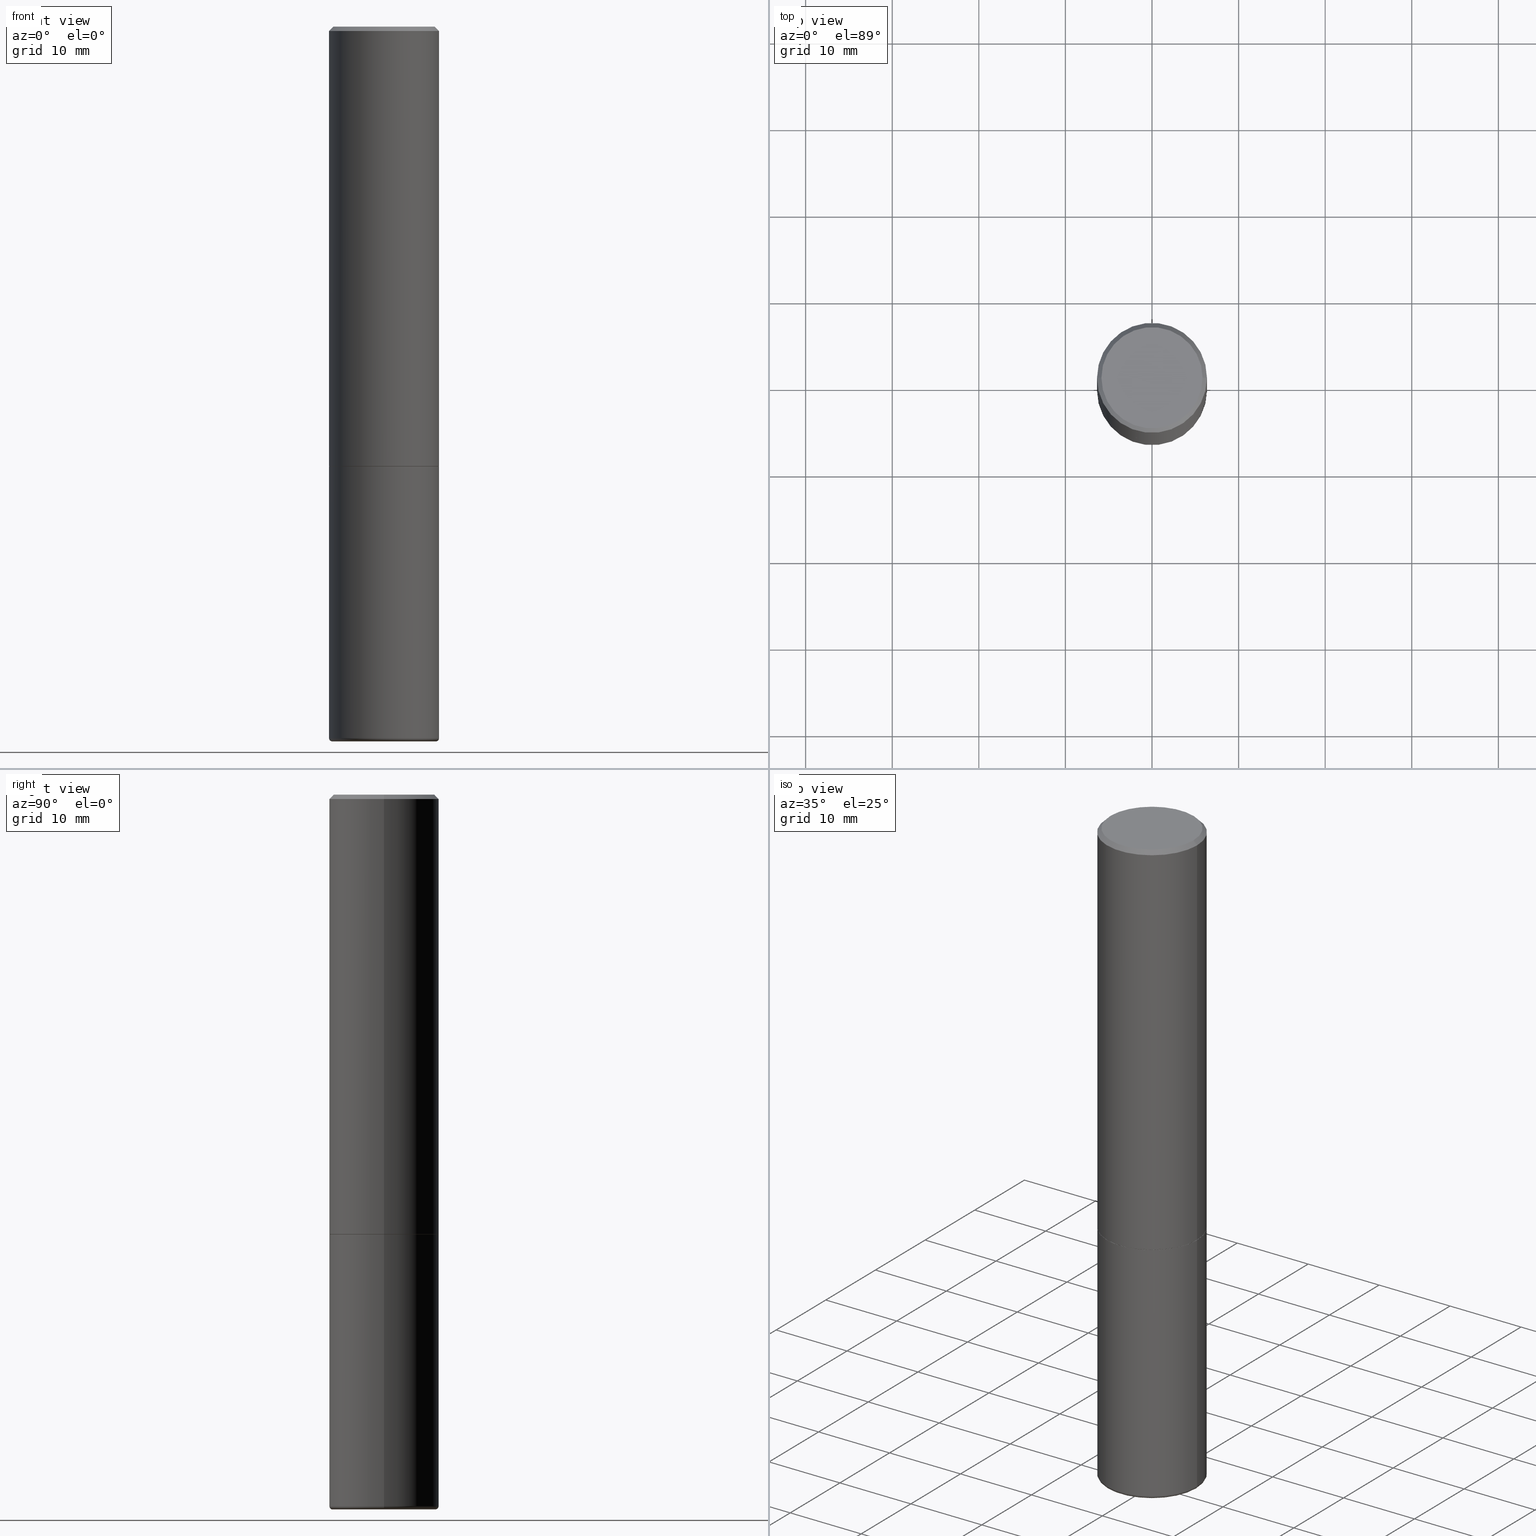
[diagram: canonical four-view strip — front | top / right | iso, engineering-drawing reading convention]
A machine part, canonical four-view strip (front | top / right | iso — engineering-drawing reading convention). The complete STEP part file that produces these views, byte-faithful:
ISO-10303-21;
HEADER;
FILE_DESCRIPTION (( 'STEP AP203' ),
    '1' );
FILE_NAME ('37352.STEP',
    '2024-03-02T00:14:32',
    ( '' ),
    ( '' ),
    'SwSTEP 2.0',
    'SolidWorks 2023',
    '' );
FILE_SCHEMA (( 'CONFIG_CONTROL_DESIGN' ));
ENDSEC;

DATA;
#1 = DIRECTION ( 'NONE',  ( -1.000000000000000000, 7.105427357601066545E-15, 0.000000000000000000 ) ) ;
#2 = CARTESIAN_POINT ( 'NONE',  ( -0.2499999999999999722, 1.675911042644703182E-15, -0.02000000000000009409 ) ) ;
#3 = CARTESIAN_POINT ( 'NONE',  ( 4.890937612370273754E-29, -6.982962677686291954E-15, -2.000000000000000444 ) ) ;
#4 = CC_DESIGN_DATE_AND_TIME_ASSIGNMENT ( #356, #69, ( #213 ) ) ;
#5 = CARTESIAN_POINT ( 'NONE',  ( 0.2489999999999999991, -8.721720384430172617E-15, -2.000000000000000444 ) ) ;
#6 = CIRCLE ( 'NONE', #128, 0.2499999999999999722 ) ;
#7 = DIRECTION ( 'NONE',  ( 1.000000000000000000, -6.982962677686266711E-15, 0.000000000000000000 ) ) ;
#8 = AXIS2_PLACEMENT_3D ( 'NONE', #40, #290, #1 ) ;
#9 = CARTESIAN_POINT ( 'NONE',  ( 4.890937612370296805E-31, -6.982962677686323656E-17, -0.02000000000000009409 ) ) ;
#10 = MANIFOLD_SOLID_BREP ( 'Body-Move/Copy2[2]', #409 ) ;
#11 = EDGE_CURVE ( 'NONE', #336, #150, #337, .T. ) ;
#12 = DIRECTION ( 'NONE',  ( -1.000000000000000000, 6.982962677686265922E-15, -4.876176775795935793E-29 ) ) ;
#13 = DIRECTION ( 'NONE',  ( -2.445468806185136597E-29, 3.491481338843145583E-15, 1.000000000000000000 ) ) ;
#14 = EDGE_LOOP ( 'NONE', ( #384, #413, #210, #358 ) ) ;
#15 = DIRECTION ( 'NONE',  ( 1.000000000000000000, -6.982962677686266711E-15, 4.876176775795935793E-29 ) ) ;
#16 = DIRECTION ( 'NONE',  ( 1.000000000000000000, -6.982962677686266711E-15, 0.000000000000000000 ) ) ;
#17 = ORIENTED_EDGE ( 'NONE', *, *, #30, .F. ) ;
#18 = AXIS2_PLACEMENT_3D ( 'NONE', #314, #23, #50 ) ;
#19 =( CONVERSION_BASED_UNIT ( 'INCH', #308 ) LENGTH_UNIT ( ) NAMED_UNIT ( #67 ) );
#20 = AXIS2_PLACEMENT_3D ( 'NONE', #181, #113, #55 ) ;
#21 = SECURITY_CLASSIFICATION ( '', '', #24 ) ;
#22 = CALENDAR_DATE ( 2024, 1, 3 ) ;
#23 = DIRECTION ( 'NONE',  ( -2.445468806185136597E-29, 3.491481338843145583E-15, 1.000000000000000000 ) ) ;
#24 = SECURITY_CLASSIFICATION_LEVEL ( 'unclassified' ) ;
#25 = APPROVAL_DATE_TIME ( #287, #400 ) ;
#26 = AXIS2_PLACEMENT_3D ( 'NONE', #233, #77, #401 ) ;
#27 = CIRCLE ( 'NONE', #377, 0.2500000000000000000 ) ;
#28 = PRODUCT ( '37352', '37352', '', ( #188 ) ) ;
#29 = PERSON_AND_ORGANIZATION ( #283, #91 ) ;
#30 = EDGE_CURVE ( 'NONE', #392, #240, #298, .T. ) ;
#31 = APPROVAL_ROLE ( '' ) ;
#32 = VERTEX_POINT ( 'NONE', #119 ) ;
#33 = ADVANCED_BREP_SHAPE_REPRESENTATION ( '37352', ( #414, #10, #345 ), #389 ) ;
#34 = CONICAL_SURFACE ( 'NONE', #145, 0.2489999999999999991, 0.7853981633975336552 ) ;
#35 = VECTOR ( 'NONE', #364, 39.37007874015748143 ) ;
#36 = EDGE_CURVE ( 'NONE', #253, #110, #388, .T. ) ;
#37 = FACE_OUTER_BOUND ( 'NONE', #60, .T. ) ;
#38 = FACE_OUTER_BOUND ( 'NONE', #14, .T. ) ;
#39 = ORIENTED_EDGE ( 'NONE', *, *, #241, .F. ) ;
#40 = CARTESIAN_POINT ( 'NONE',  ( -0.2350000000000000144, -9.625166702121340032E-15, -3.234999999999999876 ) ) ;
#41 = CARTESIAN_POINT ( 'NONE',  ( -1.043851414335219407E-44, 1.490343170380446839E-30, 4.268512490100409923E-16 ) ) ;
#42 = COORDINATED_UNIVERSAL_TIME_OFFSET ( 5, 0, .BEHIND. ) ;
#43 = ORIENTED_EDGE ( 'NONE', *, *, #373, .T. ) ;
#44 = CC_DESIGN_APPROVAL ( #400, ( #213 ) ) ;
#45 = DIRECTION ( 'NONE',  ( 1.000000000000000000, -6.982962677686268288E-15, 0.000000000000000000 ) ) ;
#46 = DATE_AND_TIME ( #404, #80 ) ;
#47 = DIRECTION ( 'NONE',  ( 1.000000000000000000, -6.982962677686265922E-15, 4.876176775795935793E-29 ) ) ;
#48 = CARTESIAN_POINT ( 'NONE',  ( -0.2499999999999999722, 1.675911042644703182E-15, -0.02000000000000009409 ) ) ;
#49 = DIRECTION ( 'NONE',  ( 1.000000000000000000, -6.982962677686270655E-15, 0.000000000000000000 ) ) ;
#50 = DIRECTION ( 'NONE',  ( 1.000000000000000000, -6.982962677686270655E-15, 0.000000000000000000 ) ) ;
#51 = APPROVAL_STATUS ( 'not_yet_approved' ) ;
#52 = PRODUCT_RELATED_PRODUCT_CATEGORY ( 'detail', '', ( #28 ) ) ;
#53 = CARTESIAN_POINT ( 'NONE',  ( 0.000000000000000000, 0.000000000000000000, 0.000000000000000000 ) ) ;
#54 = CARTESIAN_POINT ( 'NONE',  ( 0.2350000000000000144, -1.293593836041384947E-14, -3.234999999999999876 ) ) ;
#55 = DIRECTION ( 'NONE',  ( 1.000000000000000000, -6.982962677686270655E-15, 0.000000000000000000 ) ) ;
#56 =( NAMED_UNIT ( * ) SI_UNIT ( $, .STERADIAN. ) SOLID_ANGLE_UNIT ( ) );
#57 = DIRECTION ( 'NONE',  ( 1.000000000000000000, -6.982962677686266711E-15, 0.000000000000000000 ) ) ;
#58 = ADVANCED_FACE ( 'NONE', ( #215 ), #374, .T. ) ;
#59 = DATE_AND_TIME ( #22, #183 ) ;
#60 = EDGE_LOOP ( 'NONE', ( #341, #141, #332, #386 ) ) ;
#61 = APPROVAL_PERSON_ORGANIZATION ( #248, #400, #220 ) ;
#62 = PERSON_AND_ORGANIZATION_ROLE ( 'creator' ) ;
#63 = CARTESIAN_POINT ( 'NONE',  ( 0.000000000000000000, 0.000000000000000000, 0.000000000000000000 ) ) ;
#64 = CARTESIAN_POINT ( 'NONE',  ( 4.890937612370296805E-31, -6.982962677686323656E-17, -0.02000000000000009409 ) ) ;
#65 = CALENDAR_DATE ( 2024, 1, 3 ) ;
#66 = EDGE_LOOP ( 'NONE', ( #366, #259, #293, #162 ) ) ;
#67 = DIMENSIONAL_EXPONENTS ( 1.000000000000000000, 0.000000000000000000, 0.000000000000000000, 0.000000000000000000, 0.000000000000000000, 0.000000000000000000, 0.000000000000000000 ) ;
#68 = TOROIDAL_SURFACE ( 'NONE', #350, 0.2350000000000000144, 0.01500000000000038629 ) ;
#69 = DATE_TIME_ROLE ( 'creation_date' ) ;
#70 = CARTESIAN_POINT ( 'NONE',  ( 0.2499999999999999722, -1.784954126219746189E-15, -0.02000000000000009409 ) ) ;
#71 = AXIS2_PLACEMENT_3D ( 'NONE', #239, #272, #406 ) ;
#72 = ORIENTED_EDGE ( 'NONE', *, *, #127, .F. ) ;
#73 = CARTESIAN_POINT ( 'NONE',  ( 2.671324608371790310E-29, -1.890348965286478456E-14, -3.250000000000000444 ) ) ;
#74 = CYLINDRICAL_SURFACE ( 'NONE', #376, 0.2500000000000001110 ) ;
#75 = DIRECTION ( 'NONE',  ( 2.438088387897960049E-29, -3.491481338843145188E-15, -1.000000000000000000 ) ) ;
#76 = CARTESIAN_POINT ( 'NONE',  ( 0.2500000000000000000, -8.728703347107858632E-15, -2.000000000000000444 ) ) ;
#77 = DIRECTION ( 'NONE',  ( -2.445468806185136597E-29, 3.491481338843145583E-15, 1.000000000000000000 ) ) ;
#78 = CC_DESIGN_PERSON_AND_ORGANIZATION_ASSIGNMENT ( #383, #286, ( #213 ) ) ;
#79 = ORIENTED_EDGE ( 'NONE', *, *, #285, .T. ) ;
#80 = LOCAL_TIME ( 19, 14, 32.00000000000000000, #42 ) ;
#81 = DIRECTION ( 'NONE',  ( -2.445468806185136597E-29, 3.491481338843145583E-15, 1.000000000000000000 ) ) ;
#82 = ORIENTED_EDGE ( 'NONE', *, *, #305, .F. ) ;
#83 = DIRECTION ( 'NONE',  ( 1.000000000000000000, -6.982962677686266711E-15, 0.000000000000000000 ) ) ;
#84 = APPROVAL_ROLE ( '' ) ;
#85 = ADVANCED_FACE ( 'NONE', ( #115 ), #244, .F. ) ;
#86 = TOROIDAL_SURFACE ( 'NONE', #26, 0.2350000000000000144, 0.01500000000000038629 ) ;
#87 = VECTOR ( 'NONE', #333, 39.37007874015748143 ) ;
#88 = ADVANCED_FACE ( 'NONE', ( #225 ), #68, .T. ) ;
#89 = DIRECTION ( 'NONE',  ( 1.000000000000000000, -6.982962677686266711E-15, 4.879110437680785527E-29 ) ) ;
#90 = APPLICATION_CONTEXT ( 'configuration controlled 3d designs of mechanical parts and assemblies' ) ;
#91 = ORGANIZATION ( 'UNSPECIFIED', 'UNSPECIFIED', '' ) ;
#92 = ORIENTED_EDGE ( 'NONE', *, *, #261, .F. ) ;
#93 = PERSON_AND_ORGANIZATION ( #283, #91 ) ;
#94 = DESIGN_CONTEXT ( 'detailed design', #90, 'design' ) ;
#95 = VECTOR ( 'NONE', #399, 39.37007874015748143 ) ;
#96 = APPLICATION_PROTOCOL_DEFINITION ( 'international standard', 'config_control_design', 1994, #90 ) ;
#97 = ORIENTED_EDGE ( 'NONE', *, *, #348, .F. ) ;
#98 = ADVANCED_FACE ( 'NONE', ( #385 ), #310, .T. ) ;
#99 = VERTEX_POINT ( 'NONE', #2 ) ;
#100 = LINE ( 'NONE', #294, #35 ) ;
#101 = VECTOR ( 'NONE', #174, 39.37007874015748143 ) ;
#102 = EDGE_LOOP ( 'NONE', ( #372, #276, #155, #92 ) ) ;
#103 = CC_DESIGN_PERSON_AND_ORGANIZATION_ASSIGNMENT ( #29, #186, ( #207 ) ) ;
#104 = LINE ( 'NONE', #133, #87 ) ;
#105 = DIRECTION ( 'NONE',  ( 1.000000000000000000, -6.982962677686266711E-15, 0.000000000000000000 ) ) ;
#106 = AXIS2_PLACEMENT_3D ( 'NONE', #178, #343, #49 ) ;
#107 = APPROVAL_PERSON_ORGANIZATION ( #352, #200, #31 ) ;
#108 =( LENGTH_UNIT ( ) NAMED_UNIT ( * ) SI_UNIT ( $, .METRE. ) );
#109 = CYLINDRICAL_SURFACE ( 'NONE', #71, 0.2500000000000001110 ) ;
#110 = VERTEX_POINT ( 'NONE', #255 ) ;
#111 = EDGE_CURVE ( 'NONE', #117, #99, #6, .T. ) ;
#112 = ORIENTED_EDGE ( 'NONE', *, *, #158, .T. ) ;
#113 = DIRECTION ( 'NONE',  ( -2.445468806185136597E-29, 3.491481338843145583E-15, 1.000000000000000000 ) ) ;
#114 = CARTESIAN_POINT ( 'NONE',  ( 4.890937612370273754E-29, -6.982962677686291954E-15, -2.000000000000000444 ) ) ;
#115 = FACE_OUTER_BOUND ( 'NONE', #316, .T. ) ;
#116 = FACE_OUTER_BOUND ( 'NONE', #300, .T. ) ;
#117 = VERTEX_POINT ( 'NONE', #70 ) ;
#118 = CONICAL_SURFACE ( 'NONE', #212, 0.2489999999999999991, 0.7853981633975336552 ) ;
#119 = CARTESIAN_POINT ( 'NONE',  ( 0.2489999999999999991, -8.721720384430172617E-15, -2.000000000000000444 ) ) ;
#120 = EDGE_CURVE ( 'NONE', #336, #132, #194, .T. ) ;
#121 = PERSON_AND_ORGANIZATION_ROLE ( 'design_owner' ) ;
#122 = ORIENTED_EDGE ( 'NONE', *, *, #354, .T. ) ;
#123 = CC_DESIGN_DATE_AND_TIME_ASSIGNMENT ( #59, #282, ( #21 ) ) ;
#124 = APPLICATION_PROTOCOL_DEFINITION ( 'international standard', 'config_control_design', 1994, #367 ) ;
#125 = DIRECTION ( 'NONE',  ( 2.445468806185136597E-29, -3.491481338843145583E-15, -1.000000000000000000 ) ) ;
#126 = ORIENTED_EDGE ( 'NONE', *, *, #195, .F. ) ;
#127 = EDGE_CURVE ( 'NONE', #240, #392, #236, .T. ) ;
#128 = AXIS2_PLACEMENT_3D ( 'NONE', #64, #251, #387 ) ;
#129 = CARTESIAN_POINT ( 'NONE',  ( 7.947773620101696182E-29, -1.134731435124022600E-14, -3.250000000000000444 ) ) ;
#130 = AXIS2_PLACEMENT_3D ( 'NONE', #41, #13, #360 ) ;
#131 = CARTESIAN_POINT ( 'NONE',  ( 4.888492143564088712E-29, -6.979471196347448158E-15, -1.999000000000000110 ) ) ;
#132 = VERTEX_POINT ( 'NONE', #205 ) ;
#133 = CARTESIAN_POINT ( 'NONE',  ( 0.2500000000000000000, -1.745740669421566678E-15, 1.219044193948983948E-29 ) ) ;
#134 = DIRECTION ( 'NONE',  ( -1.000000000000000000, 6.982962677686266711E-15, 0.000000000000000000 ) ) ;
#135 = ORIENTED_EDGE ( 'NONE', *, *, #36, .T. ) ;
#136 = DIRECTION ( 'NONE',  ( -2.445468806185136597E-29, 3.491481338843145583E-15, 1.000000000000000000 ) ) ;
#137 = EDGE_CURVE ( 'NONE', #32, #295, #234, .T. ) ;
#138 = AXIS2_PLACEMENT_3D ( 'NONE', #9, #230, #134 ) ;
#139 = DIRECTION ( 'NONE',  ( -2.445468806185136877E-29, 3.491481338843145188E-15, 1.000000000000000000 ) ) ;
#140 = CARTESIAN_POINT ( 'NONE',  ( 0.000000000000000000, 0.000000000000000000, 0.000000000000000000 ) ) ;
#141 = ORIENTED_EDGE ( 'NONE', *, *, #381, .T. ) ;
#142 = ADVANCED_FACE ( 'NONE', ( #37 ), #74, .T. ) ;
#143 = FACE_OUTER_BOUND ( 'NONE', #152, .T. ) ;
#144 = ORIENTED_EDGE ( 'NONE', *, *, #265, .F. ) ;
#145 = AXIS2_PLACEMENT_3D ( 'NONE', #201, #365, #16 ) ;
#146 = CARTESIAN_POINT ( 'NONE',  ( -0.2489999999999999991, -5.213711265643642498E-15, -2.000000000000000444 ) ) ;
#147 = CARTESIAN_POINT ( 'NONE',  ( 0.000000000000000000, 0.000000000000000000, 0.000000000000000000 ) ) ;
#148 = FACE_OUTER_BOUND ( 'NONE', #281, .T. ) ;
#149 = AXIS2_PLACEMENT_3D ( 'NONE', #73, #75, #12 ) ;
#150 = VERTEX_POINT ( 'NONE', #304 ) ;
#151 = FACE_OUTER_BOUND ( 'NONE', #102, .T. ) ;
#152 = EDGE_LOOP ( 'NONE', ( #330, #270 ) ) ;
#153 = PERSON_AND_ORGANIZATION ( #283, #91 ) ;
#154 = ADVANCED_FACE ( 'NONE', ( #38 ), #34, .T. ) ;
#155 = ORIENTED_EDGE ( 'NONE', *, *, #111, .F. ) ;
#156 = LOCAL_TIME ( 19, 14, 32.00000000000000000, #221 ) ;
#157 = COORDINATED_UNIVERSAL_TIME_OFFSET ( 5, 0, .BEHIND. ) ;
#158 = EDGE_CURVE ( 'NONE', #99, #117, #361, .T. ) ;
#159 = CALENDAR_DATE ( 2024, 1, 3 ) ;
#160 = ORIENTED_EDGE ( 'NONE', *, *, #30, .T. ) ;
#161 = CARTESIAN_POINT ( 'NONE',  ( -0.2500000000000000000, 1.776356839400250465E-15, -1.229733772563726445E-29 ) ) ;
#162 = ORIENTED_EDGE ( 'NONE', *, *, #354, .F. ) ;
#163 = AXIS2_PLACEMENT_3D ( 'NONE', #167, #299, #45 ) ;
#164 = VERTEX_POINT ( 'NONE', #371 ) ;
#165 = DIRECTION ( 'NONE',  ( -2.445468806185136597E-29, 3.491481338843145583E-15, 1.000000000000000000 ) ) ;
#166 = DIRECTION ( 'NONE',  ( 2.438088387897960049E-29, -3.491481338843145188E-15, -1.000000000000000000 ) ) ;
#167 = CARTESIAN_POINT ( 'NONE',  ( 4.888492143564088712E-29, -6.979471196347448158E-15, -1.999000000000000110 ) ) ;
#168 = VERTEX_POINT ( 'NONE', #76 ) ;
#169 = LINE ( 'NONE', #329, #170 ) ;
#170 = VECTOR ( 'NONE', #139, 39.37007874015748143 ) ;
#171 = LINE ( 'NONE', #48, #307 ) ;
#172 = ORIENTED_EDGE ( 'NONE', *, *, #373, .F. ) ;
#173 = ORIENTED_EDGE ( 'NONE', *, *, #36, .F. ) ;
#174 = DIRECTION ( 'NONE',  ( 0.7071067811866078578, -2.468850131082888544E-15, 0.7071067811864871766 ) ) ;
#175 = ORIENTED_EDGE ( 'NONE', *, *, #137, .F. ) ;
#176 = EDGE_LOOP ( 'NONE', ( #172, #160, #79, #393 ) ) ;
#177 = DIRECTION ( 'NONE',  ( -2.445468806185136597E-29, 3.491481338843145583E-15, 1.000000000000000000 ) ) ;
#178 = CARTESIAN_POINT ( 'NONE',  ( 7.911091588008916622E-29, -1.129494213115757616E-14, -3.234999999999999876 ) ) ;
#179 = CC_DESIGN_PERSON_AND_ORGANIZATION_ASSIGNMENT ( #324, #62, ( #207 ) ) ;
#180 = EDGE_LOOP ( 'NONE', ( #309, #228, #122, #82 ) ) ;
#181 = CARTESIAN_POINT ( 'NONE',  ( 7.947773620101696182E-29, -1.134731435124022600E-14, -3.250000000000000444 ) ) ;
#182 = AXIS2_PLACEMENT_3D ( 'NONE', #246, #177, #89 ) ;
#183 = LOCAL_TIME ( 19, 14, 32.00000000000000000, #157 ) ;
#184 = DIRECTION ( 'NONE',  ( -0.7071067811866078578, 7.493145998870571886E-15, 0.7071067811864871766 ) ) ;
#185 = ADVANCED_FACE ( 'NONE', ( #268 ), #86, .T. ) ;
#186 = PERSON_AND_ORGANIZATION_ROLE ( 'design_supplier' ) ;
#187 = ORIENTED_EDGE ( 'NONE', *, *, #416, .T. ) ;
#188 = MECHANICAL_CONTEXT ( 'NONE', #367, 'mechanical' ) ;
#189 = APPROVAL_DATE_TIME ( #390, #200 ) ;
#190 = AXIS2_PLACEMENT_3D ( 'NONE', #3, #166, #331 ) ;
#191 = CIRCLE ( 'NONE', #284, 0.2500000000000000000 ) ;
#192 = CARTESIAN_POINT ( 'NONE',  ( 4.890937612370296805E-31, -6.982962677686323656E-17, -0.02000000000000009409 ) ) ;
#193 = ORIENTED_EDGE ( 'NONE', *, *, #127, .T. ) ;
#194 = LINE ( 'NONE', #161, #417 ) ;
#195 = EDGE_CURVE ( 'NONE', #235, #32, #263, .T. ) ;
#196 = UNCERTAINTY_MEASURE_WITH_UNIT (LENGTH_MEASURE( 1.000000000000000082E-05 ), #19, 'distance_accuracy_value', 'NONE');
#197 = DIRECTION ( 'NONE',  ( 1.000000000000000000, -6.982962677686268288E-15, 0.000000000000000000 ) ) ;
#198 = CARTESIAN_POINT ( 'NONE',  ( -0.2489999999999999991, -5.208412811295419307E-15, -2.000000000000000444 ) ) ;
#199 = CIRCLE ( 'NONE', #18, 0.2500000000000000000 ) ;
#200 = APPROVAL ( #325, 'UNSPECIFIED' ) ;
#201 = CARTESIAN_POINT ( 'NONE',  ( 4.890937612370273754E-29, -6.982962677686291954E-15, -2.000000000000000444 ) ) ;
#202 = LINE ( 'NONE', #208, #95 ) ;
#203 = FACE_OUTER_BOUND ( 'NONE', #320, .T. ) ;
#204 = FACE_OUTER_BOUND ( 'NONE', #297, .T. ) ;
#205 = CARTESIAN_POINT ( 'NONE',  ( -0.2500000000000000000, -7.362595565021682805E-15, -2.000000000000000444 ) ) ;
#206 = ADVANCED_FACE ( 'NONE', ( #143 ), #396, .F. ) ;
#207 = PRODUCT_DEFINITION_FORMATION_WITH_SPECIFIED_SOURCE ( 'ANY', '', #28, .NOT_KNOWN. ) ;
#208 = CARTESIAN_POINT ( 'NONE',  ( -0.2500000000000001110, 1.776356839400251254E-15, -1.229733772563727006E-29 ) ) ;
#209 = CARTESIAN_POINT ( 'NONE',  ( 0.2350000000000000144, -1.298831058049649931E-14, -3.250000000000000444 ) ) ;
#210 = ORIENTED_EDGE ( 'NONE', *, *, #137, .T. ) ;
#211 = CARTESIAN_POINT ( 'NONE',  ( 0.2500000000000002220, -8.725211865769017202E-15, -1.999000000000000110 ) ) ;
#212 = AXIS2_PLACEMENT_3D ( 'NONE', #403, #243, #83 ) ;
#213 = PRODUCT_DEFINITION ( 'UNKNOWN', '', #207, #94 ) ;
#214 = DIRECTION ( 'NONE',  ( -0.7071067811865460184, 2.468850131082241283E-15, -0.7071067811865490160 ) ) ;
#215 = FACE_OUTER_BOUND ( 'NONE', #180, .T. ) ;
#216 = FACE_OUTER_BOUND ( 'NONE', #66, .T. ) ;
#217 = ADVANCED_FACE ( 'NONE', ( #203 ), #410, .T. ) ;
#218 = AXIS2_PLACEMENT_3D ( 'NONE', #266, #136, #105 ) ;
#219 = CARTESIAN_POINT ( 'NONE',  ( 7.911091588008916622E-29, -1.129494213115757616E-14, -3.234999999999999876 ) ) ;
#220 = APPROVAL_ROLE ( '' ) ;
#221 = COORDINATED_UNIVERSAL_TIME_OFFSET ( 5, 0, .BEHIND. ) ;
#222 = APPROVAL_STATUS ( 'not_yet_approved' ) ;
#223 = EDGE_LOOP ( 'NONE', ( #173, #238, #280, #144 ) ) ;
#224 = LOCAL_TIME ( 19, 14, 32.00000000000000000, #318 ) ;
#225 = FACE_OUTER_BOUND ( 'NONE', #313, .T. ) ;
#226 = DIRECTION ( 'NONE',  ( 1.000000000000000000, -6.982962677686270655E-15, 0.000000000000000000 ) ) ;
#227 = EDGE_CURVE ( 'NONE', #110, #253, #291, .T. ) ;
#228 = ORIENTED_EDGE ( 'NONE', *, *, #11, .T. ) ;
#229 = AXIS2_PLACEMENT_3D ( 'NONE', #53, #353, #412 ) ;
#230 = DIRECTION ( 'NONE',  ( 2.445468806185136597E-29, -3.491481338843145583E-15, -1.000000000000000000 ) ) ;
#231 = AXIS2_PLACEMENT_3D ( 'NONE', #131, #394, #197 ) ;
#232 = DIRECTION ( 'NONE',  ( -2.445468806185136597E-29, 3.491481338843145583E-15, 1.000000000000000000 ) ) ;
#233 = CARTESIAN_POINT ( 'NONE',  ( 7.911091588008916622E-29, -1.129494213115757616E-14, -3.234999999999999876 ) ) ;
#234 = LINE ( 'NONE', #5, #101 ) ;
#235 = VERTEX_POINT ( 'NONE', #198 ) ;
#236 = CIRCLE ( 'NONE', #328, 0.2350000000000000144 ) ;
#237 = AXIS2_PLACEMENT_3D ( 'NONE', #114, #242, #375 ) ;
#238 = ORIENTED_EDGE ( 'NONE', *, *, #348, .T. ) ;
#239 = CARTESIAN_POINT ( 'NONE',  ( 0.000000000000000000, 0.000000000000000000, 0.000000000000000000 ) ) ;
#240 = VERTEX_POINT ( 'NONE', #209 ) ;
#241 = EDGE_CURVE ( 'NONE', #295, #164, #301, .T. ) ;
#242 = DIRECTION ( 'NONE',  ( -2.445468806185136597E-29, 3.491481338843145583E-15, 1.000000000000000000 ) ) ;
#243 = DIRECTION ( 'NONE',  ( -2.445468806185136597E-29, 3.491481338843145583E-15, 1.000000000000000000 ) ) ;
#244 = PLANE ( 'NONE',  #256 ) ;
#245 = AXIS2_PLACEMENT_3D ( 'NONE', #147, #267, #15 ) ;
#246 = CARTESIAN_POINT ( 'NONE',  ( -1.043851414335219407E-44, 1.490343170380446839E-30, 4.268512490100409923E-16 ) ) ;
#247 = DIRECTION ( 'NONE',  ( -6.982962677686266711E-15, -1.000000000000000000, 3.491481338843145583E-15 ) ) ;
#248 = PERSON_AND_ORGANIZATION ( #283, #91 ) ;
#249 = DIRECTION ( 'NONE',  ( 1.000000000000000000, 0.000000000000000000, 0.000000000000000000 ) ) ;
#250 = LOCAL_TIME ( 19, 14, 32.00000000000000000, #315 ) ;
#251 = DIRECTION ( 'NONE',  ( -2.445468806185136597E-29, 3.491481338843145583E-15, 1.000000000000000000 ) ) ;
#252 = CALENDAR_DATE ( 2024, 1, 3 ) ;
#253 = VERTEX_POINT ( 'NONE', #340 ) ;
#254 = CC_DESIGN_PERSON_AND_ORGANIZATION_ASSIGNMENT ( #93, #121, ( #28 ) ) ;
#255 = CARTESIAN_POINT ( 'NONE',  ( -0.2299999999999995381, 1.640996229256271139E-15, 4.268512490100296524E-16 ) ) ;
#256 = AXIS2_PLACEMENT_3D ( 'NONE', #349, #319, #411 ) ;
#257 = APPROVAL_PERSON_ORGANIZATION ( #292, #273, #84 ) ;
#258 = DIRECTION ( 'NONE',  ( -2.445468806185136597E-29, 3.491481338843145583E-15, 1.000000000000000000 ) ) ;
#259 = ORIENTED_EDGE ( 'NONE', *, *, #120, .T. ) ;
#260 = DIRECTION ( 'NONE',  ( -1.000000000000000000, 6.982962677686266711E-15, 0.000000000000000000 ) ) ;
#261 = EDGE_CURVE ( 'NONE', #295, #117, #169, .T. ) ;
#262 = PRODUCT_DEFINITION_SHAPE ( 'NONE', 'NONE',  #213 ) ;
#263 = CIRCLE ( 'NONE', #323, 0.2489999999999999991 ) ;
#264 = ORIENTED_EDGE ( 'NONE', *, *, #227, .T. ) ;
#265 = EDGE_CURVE ( 'NONE', #110, #99, #171, .T. ) ;
#266 = CARTESIAN_POINT ( 'NONE',  ( 4.890937612370296805E-31, -6.982962677686323656E-17, -0.02000000000000009409 ) ) ;
#267 = DIRECTION ( 'NONE',  ( -2.445468806185136597E-29, 3.491481338843145583E-15, 1.000000000000000000 ) ) ;
#268 = FACE_OUTER_BOUND ( 'NONE', #176, .T. ) ;
#269 = ORIENTED_EDGE ( 'NONE', *, *, #265, .T. ) ;
#270 = ORIENTED_EDGE ( 'NONE', *, *, #305, .T. ) ;
#271 = CYLINDRICAL_SURFACE ( 'NONE', #245, 0.2500000000000000000 ) ;
#272 = DIRECTION ( 'NONE',  ( -2.445468806185136597E-29, 3.491481338843145583E-15, 1.000000000000000000 ) ) ;
#273 = APPROVAL ( #51, 'UNSPECIFIED' ) ;
#274 = CARTESIAN_POINT ( 'NONE',  ( 4.890937612370273754E-29, -6.982962677686291954E-15, -2.000000000000000444 ) ) ;
#275 =( NAMED_UNIT ( * ) PLANE_ANGLE_UNIT ( ) SI_UNIT ( $, .RADIAN. ) );
#276 = ORIENTED_EDGE ( 'NONE', *, *, #363, .T. ) ;
#277 = DIRECTION ( 'NONE',  ( 1.000000000000000000, -6.982962677686217012E-15, 0.000000000000000000 ) ) ;
#278 = VECTOR ( 'NONE', #184, 39.37007874015748143 ) ;
#279 = ADVANCED_FACE ( 'NONE', ( #148 ), #118, .T. ) ;
#280 = ORIENTED_EDGE ( 'NONE', *, *, #111, .T. ) ;
#281 = EDGE_LOOP ( 'NONE', ( #187, #368, #39, #175 ) ) ;
#282 = DATE_TIME_ROLE ( 'classification_date' ) ;
#283 = PERSON ( 'UNSPECIFIED', 'UNSPECIFIED', 'UNSPECIFIED', ('UNSPECIFIED'), ('UNSPECIFIED'), ('UNSPECIFIED') ) ;
#284 = AXIS2_PLACEMENT_3D ( 'NONE', #369, #165, #7 ) ;
#285 = EDGE_CURVE ( 'NONE', #240, #150, #382, .T. ) ;
#286 = PERSON_AND_ORGANIZATION_ROLE ( 'creator' ) ;
#287 = DATE_AND_TIME ( #252, #224 ) ;
#288 = DIRECTION ( 'NONE',  ( -2.445468806185136877E-29, 3.491481338843145188E-15, 1.000000000000000000 ) ) ;
#289 = AXIS2_PLACEMENT_3D ( 'NONE', #192, #125, #260 ) ;
#290 = DIRECTION ( 'NONE',  ( 7.105427357601001859E-15, 1.000000000000000000, -3.491481338843145583E-15 ) ) ;
#291 = CIRCLE ( 'NONE', #130, 0.2299999999999995381 ) ;
#292 = PERSON_AND_ORGANIZATION ( #283, #91 ) ;
#293 = ORIENTED_EDGE ( 'NONE', *, *, #342, .F. ) ;
#294 = CARTESIAN_POINT ( 'NONE',  ( 0.2499999999999999722, -1.784954126219746189E-15, -0.02000000000000009409 ) ) ;
#295 = VERTEX_POINT ( 'NONE', #211 ) ;
#296 = SHAPE_DEFINITION_REPRESENTATION ( #262, #33 ) ;
#297 = EDGE_LOOP ( 'NONE', ( #72, #17 ) ) ;
#298 = CIRCLE ( 'NONE', #20, 0.2350000000000000144 ) ;
#299 = DIRECTION ( 'NONE',  ( -2.445468806185136597E-29, 3.491481338843145583E-15, 1.000000000000000000 ) ) ;
#300 = EDGE_LOOP ( 'NONE', ( #317, #126 ) ) ;
#301 = CIRCLE ( 'NONE', #163, 0.2500000000000002220 ) ;
#302 = EDGE_CURVE ( 'NONE', #150, #336, #199, .T. ) ;
#303 = PLANE ( 'NONE',  #149 ) ;
#304 = CARTESIAN_POINT ( 'NONE',  ( 0.2500000000000002220, -1.304068280057914284E-14, -3.234999999999999876 ) ) ;
#305 = EDGE_CURVE ( 'NONE', #132, #168, #27, .T. ) ;
#306 = CLOSED_SHELL ( 'NONE', ( #397, #88, #206, #58, #185, #359 ) ) ;
#307 = VECTOR ( 'NONE', #214, 39.37007874015748143 ) ;
#308 = LENGTH_MEASURE_WITH_UNIT ( LENGTH_MEASURE( 0.02539999999999999897 ), #108 );
#309 = ORIENTED_EDGE ( 'NONE', *, *, #120, .F. ) ;
#310 = CONICAL_SURFACE ( 'NONE', #289, 0.2499999999999999722, 0.7853981633974461696 ) ;
#311 = CC_DESIGN_APPROVAL ( #273, ( #21 ) ) ;
#312 = PERSON_AND_ORGANIZATION_ROLE ( 'classification_officer' ) ;
#313 = EDGE_LOOP ( 'NONE', ( #193, #43, #326, #346 ) ) ;
#314 = CARTESIAN_POINT ( 'NONE',  ( 7.911091588008916622E-29, -1.129494213115757616E-14, -3.234999999999999876 ) ) ;
#315 = COORDINATED_UNIVERSAL_TIME_OFFSET ( 5, 0, .BEHIND. ) ;
#316 = EDGE_LOOP ( 'NONE', ( #264, #135 ) ) ;
#317 = ORIENTED_EDGE ( 'NONE', *, *, #416, .F. ) ;
#318 = COORDINATED_UNIVERSAL_TIME_OFFSET ( 5, 0, .BEHIND. ) ;
#319 = DIRECTION ( 'NONE',  ( 2.438088387897960049E-29, -3.491481338843145188E-15, -1.000000000000000000 ) ) ;
#320 = EDGE_LOOP ( 'NONE', ( #97, #380, #269, #112 ) ) ;
#321 = CARTESIAN_POINT ( 'NONE',  ( -0.2500000000000002220, -9.518585291757322543E-15, -3.234999999999999876 ) ) ;
#322 = EDGE_CURVE ( 'NONE', #235, #164, #379, .T. ) ;
#323 = AXIS2_PLACEMENT_3D ( 'NONE', #362, #81, #339 ) ;
#324 = PERSON_AND_ORGANIZATION ( #283, #91 ) ;
#325 = APPROVAL_STATUS ( 'not_yet_approved' ) ;
#326 = ORIENTED_EDGE ( 'NONE', *, *, #302, .F. ) ;
#327 = CC_DESIGN_PERSON_AND_ORGANIZATION_ASSIGNMENT ( #153, #312, ( #21 ) ) ;
#328 = AXIS2_PLACEMENT_3D ( 'NONE', #129, #391, #226 ) ;
#329 = CARTESIAN_POINT ( 'NONE',  ( 0.2500000000000001110, -1.745740669421567467E-15, 1.219044193948984509E-29 ) ) ;
#330 = ORIENTED_EDGE ( 'NONE', *, *, #342, .T. ) ;
#331 = DIRECTION ( 'NONE',  ( -1.000000000000000000, 6.982962677686265922E-15, -4.876176775795935793E-29 ) ) ;
#332 = ORIENTED_EDGE ( 'NONE', *, *, #261, .T. ) ;
#333 = DIRECTION ( 'NONE',  ( -2.445468806185136877E-29, 3.491481338843145188E-15, 1.000000000000000000 ) ) ;
#334 = DIRECTION ( 'NONE',  ( 1.000000000000000000, -6.982962677686266711E-15, 4.876176775795935793E-29 ) ) ;
#335 = ADVANCED_FACE ( 'NONE', ( #151 ), #109, .T. ) ;
#336 = VERTEX_POINT ( 'NONE', #321 ) ;
#337 = CIRCLE ( 'NONE', #106, 0.2500000000000000000 ) ;
#338 = CIRCLE ( 'NONE', #8, 0.01500000000000038629 ) ;
#339 = DIRECTION ( 'NONE',  ( 1.000000000000000000, -6.982962677686266711E-15, 0.000000000000000000 ) ) ;
#340 = CARTESIAN_POINT ( 'NONE',  ( 0.2299999999999995381, -1.681434332853596842E-15, 4.268512490100525294E-16 ) ) ;
#341 = ORIENTED_EDGE ( 'NONE', *, *, #363, .F. ) ;
#342 = EDGE_CURVE ( 'NONE', #168, #132, #191, .T. ) ;
#343 = DIRECTION ( 'NONE',  ( -2.445468806185136597E-29, 3.491481338843145583E-15, 1.000000000000000000 ) ) ;
#344 = APPROVAL_DATE_TIME ( #46, #273 ) ;
#345 = AXIS2_PLACEMENT_3D ( 'NONE', #63, #415, #249 ) ;
#346 = ORIENTED_EDGE ( 'NONE', *, *, #285, .F. ) ;
#347 = DIRECTION ( 'NONE',  ( -2.445468806185136597E-29, 3.491481338843145583E-15, 1.000000000000000000 ) ) ;
#348 = EDGE_CURVE ( 'NONE', #253, #117, #100, .T. ) ;
#349 = CARTESIAN_POINT ( 'NONE',  ( 1.606081415867837912E-15, 0.2299999999999995381, -5.896150834289013687E-16 ) ) ;
#350 = AXIS2_PLACEMENT_3D ( 'NONE', #219, #258, #355 ) ;
#351 = AXIS2_PLACEMENT_3D ( 'NONE', #274, #407, #47 ) ;
#352 = PERSON_AND_ORGANIZATION ( #283, #91 ) ;
#353 = DIRECTION ( 'NONE',  ( -2.445468806185136597E-29, 3.491481338843145583E-15, 1.000000000000000000 ) ) ;
#354 = EDGE_CURVE ( 'NONE', #150, #168, #104, .T. ) ;
#355 = DIRECTION ( 'NONE',  ( 1.000000000000000000, -6.982962677686266711E-15, 4.883557194083112901E-29 ) ) ;
#356 = DATE_AND_TIME ( #65, #156 ) ;
#357 = AXIS2_PLACEMENT_3D ( 'NONE', #54, #247, #277 ) ;
#358 = ORIENTED_EDGE ( 'NONE', *, *, #381, .F. ) ;
#359 = ADVANCED_FACE ( 'NONE', ( #204 ), #303, .T. ) ;
#360 = DIRECTION ( 'NONE',  ( 1.000000000000000000, -6.982962677686266711E-15, 4.879110437680785527E-29 ) ) ;
#361 = CIRCLE ( 'NONE', #218, 0.2499999999999999722 ) ;
#362 = CARTESIAN_POINT ( 'NONE',  ( 4.890937612370273754E-29, -6.982962677686291954E-15, -2.000000000000000444 ) ) ;
#363 = EDGE_CURVE ( 'NONE', #164, #99, #202, .T. ) ;
#364 = DIRECTION ( 'NONE',  ( 0.7071067811865460184, -7.319954787623251312E-15, -0.7071067811865490160 ) ) ;
#365 = DIRECTION ( 'NONE',  ( -2.445468806185136597E-29, 3.491481338843145583E-15, 1.000000000000000000 ) ) ;
#366 = ORIENTED_EDGE ( 'NONE', *, *, #302, .T. ) ;
#367 = APPLICATION_CONTEXT ( 'configuration controlled 3d designs of mechanical parts and assemblies' ) ;
#368 = ORIENTED_EDGE ( 'NONE', *, *, #322, .T. ) ;
#369 = CARTESIAN_POINT ( 'NONE',  ( 4.890937612370273754E-29, -6.982962677686291954E-15, -2.000000000000000444 ) ) ;
#370 = CIRCLE ( 'NONE', #231, 0.2500000000000002220 ) ;
#371 = CARTESIAN_POINT ( 'NONE',  ( -0.2500000000000002220, -1.748293572161903489E-15, -1.999000000000000110 ) ) ;
#372 = ORIENTED_EDGE ( 'NONE', *, *, #241, .T. ) ;
#373 = EDGE_CURVE ( 'NONE', #392, #336, #338, .T. ) ;
#374 = CYLINDRICAL_SURFACE ( 'NONE', #229, 0.2500000000000000000 ) ;
#375 = DIRECTION ( 'NONE',  ( 1.000000000000000000, -6.982962677686266711E-15, 0.000000000000000000 ) ) ;
#376 = AXIS2_PLACEMENT_3D ( 'NONE', #140, #232, #334 ) ;
#377 = AXIS2_PLACEMENT_3D ( 'NONE', #378, #347, #57 ) ;
#378 = CARTESIAN_POINT ( 'NONE',  ( 4.890937612370273754E-29, -6.982962677686291954E-15, -2.000000000000000444 ) ) ;
#379 = LINE ( 'NONE', #146, #278 ) ;
#380 = ORIENTED_EDGE ( 'NONE', *, *, #227, .F. ) ;
#381 = EDGE_CURVE ( 'NONE', #164, #295, #370, .T. ) ;
#382 = CIRCLE ( 'NONE', #357, 0.01500000000000038629 ) ;
#383 = PERSON_AND_ORGANIZATION ( #283, #91 ) ;
#384 = ORIENTED_EDGE ( 'NONE', *, *, #322, .F. ) ;
#385 = FACE_OUTER_BOUND ( 'NONE', #223, .T. ) ;
#386 = ORIENTED_EDGE ( 'NONE', *, *, #158, .F. ) ;
#387 = DIRECTION ( 'NONE',  ( 1.000000000000000000, -6.982962677686266711E-15, 0.000000000000000000 ) ) ;
#388 = CIRCLE ( 'NONE', #182, 0.2299999999999995381 ) ;
#389 =( GEOMETRIC_REPRESENTATION_CONTEXT ( 3 ) GLOBAL_UNCERTAINTY_ASSIGNED_CONTEXT ( ( #196 ) ) GLOBAL_UNIT_ASSIGNED_CONTEXT ( ( #19, #275, #56 ) ) REPRESENTATION_CONTEXT ( 'NONE', 'WORKASPACE' ) );
#390 = DATE_AND_TIME ( #159, #250 ) ;
#391 = DIRECTION ( 'NONE',  ( -2.445468806185136597E-29, 3.491481338843145583E-15, 1.000000000000000000 ) ) ;
#392 = VERTEX_POINT ( 'NONE', #395 ) ;
#393 = ORIENTED_EDGE ( 'NONE', *, *, #11, .F. ) ;
#394 = DIRECTION ( 'NONE',  ( -2.445468806185136597E-29, 3.491481338843145583E-15, 1.000000000000000000 ) ) ;
#395 = CARTESIAN_POINT ( 'NONE',  ( -0.2350000000000000144, -9.598062106980653841E-15, -3.250000000000000444 ) ) ;
#396 = PLANE ( 'NONE',  #190 ) ;
#397 = ADVANCED_FACE ( 'NONE', ( #216 ), #271, .T. ) ;
#398 = CC_DESIGN_APPROVAL ( #200, ( #207 ) ) ;
#399 = DIRECTION ( 'NONE',  ( -2.445468806185136877E-29, 3.491481338843145188E-15, 1.000000000000000000 ) ) ;
#400 = APPROVAL ( #222, 'UNSPECIFIED' ) ;
#401 = DIRECTION ( 'NONE',  ( 1.000000000000000000, -6.982962677686266711E-15, 4.883557194083112901E-29 ) ) ;
#402 = CIRCLE ( 'NONE', #237, 0.2489999999999999991 ) ;
#403 = CARTESIAN_POINT ( 'NONE',  ( 4.890937612370273754E-29, -6.982962677686291954E-15, -2.000000000000000444 ) ) ;
#404 = CALENDAR_DATE ( 2024, 1, 3 ) ;
#405 = PLANE ( 'NONE',  #351 ) ;
#406 = DIRECTION ( 'NONE',  ( 1.000000000000000000, -6.982962677686266711E-15, 4.876176775795935793E-29 ) ) ;
#407 = DIRECTION ( 'NONE',  ( -2.438088387897960049E-29, 3.491481338843145188E-15, 1.000000000000000000 ) ) ;
#408 = ADVANCED_FACE ( 'NONE', ( #116 ), #405, .F. ) ;
#409 = CLOSED_SHELL ( 'NONE', ( #279, #335, #98, #217, #142, #154, #408, #85 ) ) ;
#410 = CONICAL_SURFACE ( 'NONE', #138, 0.2499999999999999722, 0.7853981633974461696 ) ;
#411 = DIRECTION ( 'NONE',  ( -1.000000000000000000, 6.982962677686265922E-15, -4.876176775795935793E-29 ) ) ;
#412 = DIRECTION ( 'NONE',  ( 1.000000000000000000, -6.982962677686266711E-15, 4.876176775795935793E-29 ) ) ;
#413 = ORIENTED_EDGE ( 'NONE', *, *, #195, .T. ) ;
#414 = MANIFOLD_SOLID_BREP ( 'Body-Move/Copy2[1]', #306 ) ;
#415 = DIRECTION ( 'NONE',  ( 0.000000000000000000, 0.000000000000000000, 1.000000000000000000 ) ) ;
#416 = EDGE_CURVE ( 'NONE', #32, #235, #402, .T. ) ;
#417 = VECTOR ( 'NONE', #288, 39.37007874015748143 ) ;
#418 = CC_DESIGN_SECURITY_CLASSIFICATION ( #21, ( #207 ) ) ;
ENDSEC;
END-ISO-10303-21;
